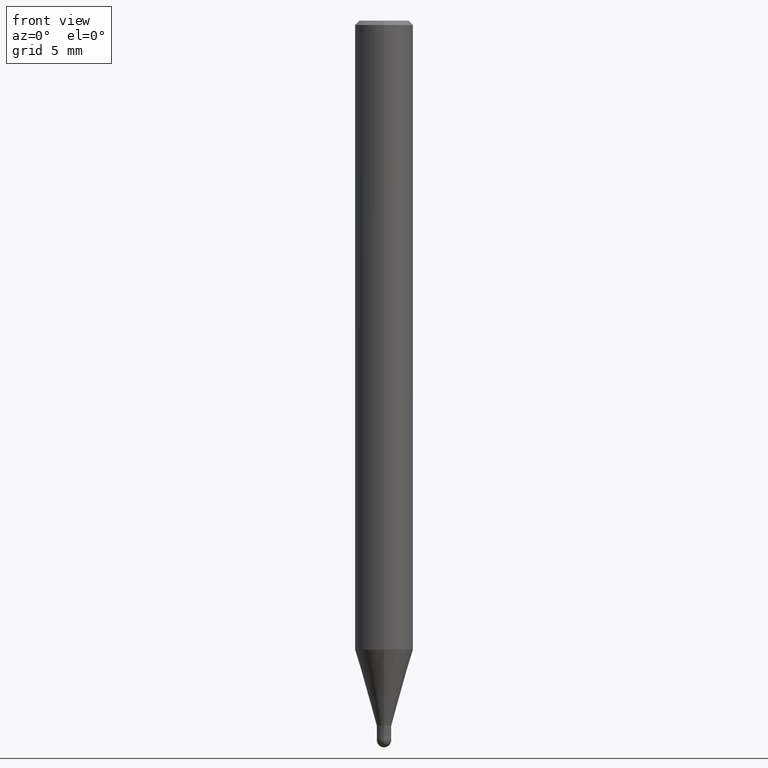
[diagram: clean part render]
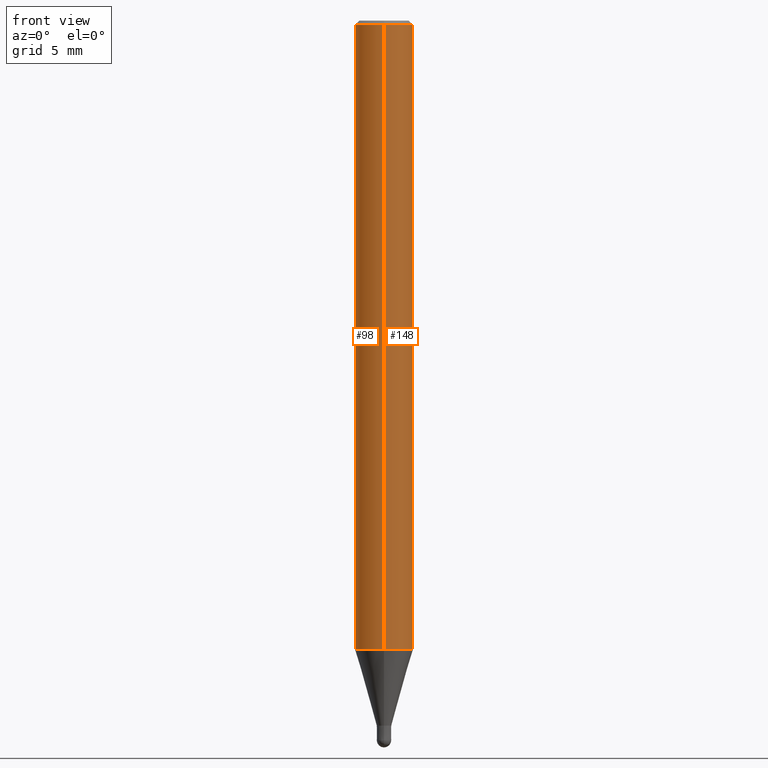
[diagram: same view with one multi-face feature highlighted, each face labeled with its STEP entity id]
A machine part, front view. The highlighted faces form ONE feature: a constant-radius fillet chain: 2 tangent blend faces with common blend radius 2 mm. The faces share edges in the B-rep.
Their STEP definitions:
[1] entity #98 (Cylinder):
#86=VERTEX_POINT('',#211);
#92=EDGE_CURVE('',#116,#138,#217,.T.);
#98=ADVANCED_FACE('',(#223),#224,.T.);
#102=EDGE_CURVE('',#116,#86,#229,.T.);
#116=VERTEX_POINT('',#244);
#138=VERTEX_POINT('',#267);
#152=EDGE_CURVE('',#190,#138,#283,.T.);
#170=EDGE_CURVE('',#86,#190,#306,.T.);
#190=VERTEX_POINT('',#330);
#211=CARTESIAN_POINT('',(2.44921270764475E-016,-2.0,-0.299999999999997));
#217=CIRCLE('',#351,2.0);
#223=FACE_OUTER_BOUND('',#358,.T.);
#224=CYLINDRICAL_SURFACE('',#359,2.0);
#229=LINE('',#365,#366);
#244=CARTESIAN_POINT('',(2.44921270764475E-016,-2.0,-43.269));
#267=CARTESIAN_POINT('',(0.0,2.0,-43.269));
#283=LINE('',#435,#436);
#306=CIRCLE('',#463,2.0);
#330=CARTESIAN_POINT('',(0.0,2.0,-0.299999999999997));
#351=AXIS2_PLACEMENT_3D('',#496,#497,#498);
#358=EDGE_LOOP('',(#503,#504,#505,#506));
#359=AXIS2_PLACEMENT_3D('',#507,#508,#509);
#365=CARTESIAN_POINT('',(2.44921270764475E-016,-2.0,-21.7845));
#366=VECTOR('',#518,1.0);
#435=CARTESIAN_POINT('',(-2.44921270764475E-016,2.0,-21.7845));
#436=VECTOR('',#574,1.0);
#463=AXIS2_PLACEMENT_3D('',#610,#611,#612);
#496=CARTESIAN_POINT('',(0.0,0.0,-43.269));
#497=DIRECTION('',(0.0,0.0,-1.0));
#498=DIRECTION('',(0.0,1.0,0.0));
#503=ORIENTED_EDGE('',*,*,#152,.T.);
#504=ORIENTED_EDGE('',*,*,#92,.F.);
#505=ORIENTED_EDGE('',*,*,#102,.T.);
#506=ORIENTED_EDGE('',*,*,#170,.T.);
#507=CARTESIAN_POINT('',(0.0,0.0,-21.7845));
#508=DIRECTION('',(-0.0,-0.0,1.0));
#509=DIRECTION('',(0.0,1.0,0.0));
#518=DIRECTION('',(-0.0,-0.0,1.0));
#574=DIRECTION('',(0.0,0.0,-1.0));
#610=CARTESIAN_POINT('',(0.0,0.0,-0.299999999999997));
#611=DIRECTION('',(0.0,0.0,-1.0));
#612=DIRECTION('',(0.0,1.0,0.0));
[2] entity #148 (Cylinder):
#86=VERTEX_POINT('',#211);
#102=EDGE_CURVE('',#116,#86,#229,.T.);
#104=EDGE_CURVE('',#138,#116,#231,.T.);
#116=VERTEX_POINT('',#244);
#138=VERTEX_POINT('',#267);
#148=ADVANCED_FACE('',(#277),#278,.T.);
#152=EDGE_CURVE('',#190,#138,#283,.T.);
#164=EDGE_CURVE('',#190,#86,#299,.T.);
#190=VERTEX_POINT('',#330);
#211=CARTESIAN_POINT('',(2.44921270764475E-016,-2.0,-0.299999999999997));
#229=LINE('',#365,#366);
#231=CIRCLE('',#369,2.0);
#244=CARTESIAN_POINT('',(2.44921270764475E-016,-2.0,-43.269));
#267=CARTESIAN_POINT('',(0.0,2.0,-43.269));
#277=FACE_OUTER_BOUND('',#428,.T.);
#278=CYLINDRICAL_SURFACE('',#429,2.0);
#283=LINE('',#435,#436);
#299=CIRCLE('',#455,2.0);
#330=CARTESIAN_POINT('',(0.0,2.0,-0.299999999999997));
#365=CARTESIAN_POINT('',(2.44921270764475E-016,-2.0,-21.7845));
#366=VECTOR('',#518,1.0);
#369=AXIS2_PLACEMENT_3D('',#519,#520,#521);
#428=EDGE_LOOP('',(#561,#562,#563,#564));
#429=AXIS2_PLACEMENT_3D('',#565,#566,#567);
#435=CARTESIAN_POINT('',(-2.44921270764475E-016,2.0,-21.7845));
#436=VECTOR('',#574,1.0);
#455=AXIS2_PLACEMENT_3D('',#601,#602,#603);
#518=DIRECTION('',(-0.0,-0.0,1.0));
#519=CARTESIAN_POINT('',(0.0,0.0,-43.269));
#520=DIRECTION('',(0.0,0.0,-1.0));
#521=DIRECTION('',(0.0,1.0,0.0));
#561=ORIENTED_EDGE('',*,*,#152,.F.);
#562=ORIENTED_EDGE('',*,*,#164,.T.);
#563=ORIENTED_EDGE('',*,*,#102,.F.);
#564=ORIENTED_EDGE('',*,*,#104,.F.);
#565=CARTESIAN_POINT('',(0.0,0.0,-21.7845));
#566=DIRECTION('',(-0.0,-0.0,1.0));
#567=DIRECTION('',(0.0,1.0,0.0));
#574=DIRECTION('',(0.0,0.0,-1.0));
#601=CARTESIAN_POINT('',(0.0,0.0,-0.299999999999997));
#602=DIRECTION('',(0.0,0.0,-1.0));
#603=DIRECTION('',(0.0,1.0,0.0));